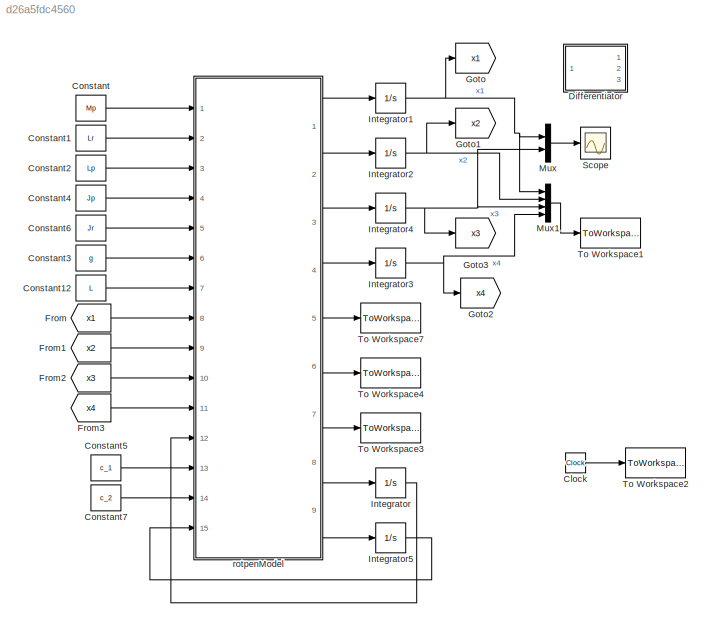
MODEL slx_d26a5fdc4560
KIND model
CONFIG AbsTol = auto
CONFIG EnableMultiTasking = off
CONFIG FixedStep = auto
CONFIG MaxStep = auto
CONFIG MinStep = auto
CONFIG RelTol = 1e-3
CONFIG SampleTimeConstraint = Unconstrained
CONFIG SolverName = VariableStepAuto
CONFIG StartTime = 0.0
CONFIG StopTime = 40
BLOCK [Clock] Clock
BLOCK [Constant] Constant
  Value = Mp
BLOCK [Constant] Constant1
  Value = Lr
BLOCK [Constant] Constant12
  Value = L
BLOCK [Constant] Constant2
  Value = Lp
BLOCK [Constant] Constant3
  Value = g
BLOCK [Constant] Constant4
  Value = Jp
BLOCK [Constant] Constant5
  Value = c_1
BLOCK [Constant] Constant6
  Value = Jr
BLOCK [Constant] Constant7
  Value = c_2
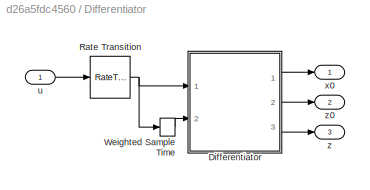
BLOCK [SubSystem] Differentiator
  Commented = on
  Ports = [1, 3]
  RequestExecContextInheritance = off
  TreatAsAtomicUnit = on
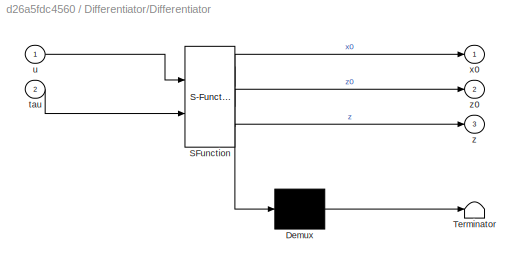
BLOCK [SubSystem] Differentiator/Differentiator
  ErrorFcn = Stateflow.Translate.translate
  PermitHierarchicalResolution = ExplicitOnly
  Ports = [2, 3]
  RequestExecContextInheritance = off
  SFBlockType = MATLAB Function
  SystemSampleTime = Ts
  TreatAsAtomicUnit = on
BLOCK [Demux] Differentiator/Differentiator/ Demux 
  Outputs = 1
  Ports = [1, 1]
BLOCK [S-Function] Differentiator/Differentiator/ SFunction 
  EnableBusSupport = on
  FunctionName = sf_sfun
  Parameters = Ts,d,m,mu,n,nf,r
  PortCounts = [2 4]
  Ports = [2, 4]
  SFcnIsStateOwnerBlock = off
  SFunctionDeploymentMode = off
  Tag = Stateflow S-Function 1
BLOCK [Terminator] Differentiator/Differentiator/ Terminator 
BLOCK [Inport] Differentiator/Differentiator/tau
  Port = 2
BLOCK [Inport] Differentiator/Differentiator/u
BLOCK [Outport] Differentiator/Differentiator/x0
  VectorParamsAs1DForOutWhenUnconnected = off
BLOCK [Outport] Differentiator/Differentiator/z
  Port = 3
  VectorParamsAs1DForOutWhenUnconnected = off
BLOCK [Outport] Differentiator/Differentiator/z0
  Port = 2
  VectorParamsAs1DForOutWhenUnconnected = off
BLOCK [RateTransition] Differentiator/Rate Transition
BLOCK [SampleTimeMath] Differentiator/Weighted Sample Time
  TsampMathOp = Ts Only
BLOCK [Inport] Differentiator/u
BLOCK [Outport] Differentiator/x0
  VectorParamsAs1DForOutWhenUnconnected = off
BLOCK [Outport] Differentiator/z
  Port = 3
  VectorParamsAs1DForOutWhenUnconnected = off
BLOCK [Outport] Differentiator/z0
  Port = 2
  VectorParamsAs1DForOutWhenUnconnected = off
BLOCK [From] From
  GotoTag = x1
BLOCK [From] From1
  GotoTag = x2
BLOCK [From] From2
  GotoTag = x3
BLOCK [From] From3
  GotoTag = x4
BLOCK [Goto] Goto
  GotoTag = x1
BLOCK [Goto] Goto1
  GotoTag = x2
BLOCK [Goto] Goto2
  GotoTag = x4
BLOCK [Goto] Goto3
  GotoTag = x3
BLOCK [Integrator] Integrator
  Ports = [1, 1]
BLOCK [Integrator] Integrator1
  InitialCondition = x0(1)
  Ports = [1, 1]
BLOCK [Integrator] Integrator2
  InitialCondition = x0(2)
  Ports = [1, 1]
BLOCK [Integrator] Integrator3
  InitialCondition = x0(4)
  Ports = [1, 1]
BLOCK [Integrator] Integrator4
  InitialCondition = x0(3)
  Ports = [1, 1]
BLOCK [Integrator] Integrator5
  Ports = [1, 1]
BLOCK [Mux] Mux
  DisplayOption = bar
  Inputs = 2
  Ports = [2, 1]
BLOCK [Mux] Mux1
  DisplayOption = bar
  Ports = [4, 1]
BLOCK [Scope] Scope
  Floating = off
  NumInputPorts = 1
  Ports = [1]
  ScopeSpecificationString = Simulink.scopes.TimeScopeBlockCfg('CurrentConfiguration', extmgr.ConfigurationSet(extmgr.Configuration('Core','General UI',true),extmgr.Configuration('Core','Source UI',true),extmgr.Configuration('Sources','WiredSimulink',true),extmgr.Configuration('Visuals','Time Domain',true,'SerializedDisplays',{struct('MinYLimReal','-1.37342','MaxYLimReal','0.53542','YLabelReal','','MinYLimMag','0.00000','MaxY...<+1424ch>
BLOCK [ToWorkspace] To Workspace1
  FixptAsFi = on
  MaxDataPoints = inf
  Ports = [1]
  SampleTime = -1
  VariableName = x
BLOCK [ToWorkspace] To Workspace2
  FixptAsFi = on
  MaxDataPoints = inf
  Ports = [1]
  SampleTime = -1
  VariableName = t
BLOCK [ToWorkspace] To Workspace3
  FixptAsFi = on
  MaxDataPoints = inf
  Ports = [1]
  SampleTime = -1
  VariableName = z
BLOCK [ToWorkspace] To Workspace4
  FixptAsFi = on
  MaxDataPoints = inf
  Ports = [1]
  SampleTime = -1
  VariableName = nuMu
BLOCK [ToWorkspace] To Workspace7
  FixptAsFi = on
  MaxDataPoints = inf
  Ports = [1]
  SampleTime = -1
  VariableName = tau
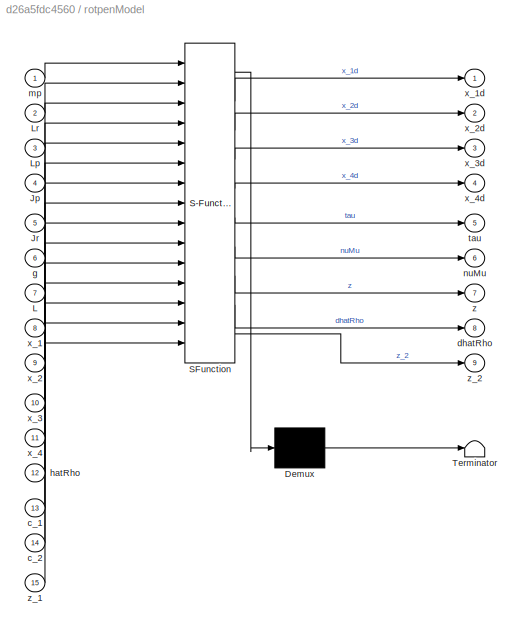
BLOCK [SubSystem] rotpenModel
  ErrorFcn = Stateflow.Translate.translate
  PermitHierarchicalResolution = ExplicitOnly
  Ports = [15, 9]
  RequestExecContextInheritance = off
  SFBlockType = MATLAB Function
  TreatAsAtomicUnit = on
BLOCK [Demux] rotpenModel/ Demux 
  Outputs = 1
  Ports = [1, 1]
BLOCK [S-Function] rotpenModel/ SFunction 
  EnableBusSupport = on
  FunctionName = sf_sfun
  PortCounts = [15 10]
  Ports = [15, 10]
  SFcnIsStateOwnerBlock = off
  SFunctionDeploymentMode = off
  Tag = Stateflow S-Function 5
BLOCK [Terminator] rotpenModel/ Terminator 
BLOCK [Inport] rotpenModel/Jp
  Port = 4
BLOCK [Inport] rotpenModel/Jr
  Port = 5
BLOCK [Inport] rotpenModel/L
  Port = 7
BLOCK [Inport] rotpenModel/Lp
  Port = 3
BLOCK [Inport] rotpenModel/Lr
  Port = 2
BLOCK [Inport] rotpenModel/c_1
  Port = 13
BLOCK [Inport] rotpenModel/c_2
  Port = 14
BLOCK [Outport] rotpenModel/dhatRho
  Port = 8
BLOCK [Inport] rotpenModel/g
  Port = 6
BLOCK [Inport] rotpenModel/hatRho
  Port = 12
BLOCK [Inport] rotpenModel/mp
BLOCK [Outport] rotpenModel/nuMu
  Port = 6
  VectorParamsAs1DForOutWhenUnconnected = off
BLOCK [Outport] rotpenModel/tau
  Port = 5
  VectorParamsAs1DForOutWhenUnconnected = off
BLOCK [Inport] rotpenModel/x_1
  Port = 8
BLOCK [Outport] rotpenModel/x_1d
BLOCK [Inport] rotpenModel/x_2
  Port = 9
BLOCK [Outport] rotpenModel/x_2d
  Port = 2
BLOCK [Inport] rotpenModel/x_3
  Port = 10
BLOCK [Outport] rotpenModel/x_3d
  Port = 3
BLOCK [Inport] rotpenModel/x_4
  Port = 11
BLOCK [Outport] rotpenModel/x_4d
  Port = 4
BLOCK [Outport] rotpenModel/z
  Port = 7
  VectorParamsAs1DForOutWhenUnconnected = off
BLOCK [Inport] rotpenModel/z_1
  Port = 15
BLOCK [Outport] rotpenModel/z_2
  Port = 9
LINE Clock:1 -> To Workspace2:1
LINE Constant12:1 -> rotpenModel:7
LINE Constant1:1 -> rotpenModel:2
LINE Constant2:1 -> rotpenModel:3
LINE Constant3:1 -> rotpenModel:6
LINE Constant4:1 -> rotpenModel:4
LINE Constant5:1 -> rotpenModel:13
LINE Constant6:1 -> rotpenModel:5
LINE Constant7:1 -> rotpenModel:14
LINE Constant:1 -> rotpenModel:1
LINE Differentiator/Differentiator:1 -> Differentiator/x0:1
LINE Differentiator/Differentiator:2 -> Differentiator/z0:1
LINE Differentiator/Differentiator:3 -> Differentiator/z:1
NET Differentiator/Rate Transition:1 -> Differentiator/Differentiator:1, Differentiator/Weighted Sample Time:1
LINE Differentiator/Weighted Sample Time:1 -> Differentiator/Differentiator:2
LINE Differentiator/u:1 -> Differentiator/Rate Transition:1
LINE From1:1 -> rotpenModel:9
LINE From2:1 -> rotpenModel:10
LINE From3:1 -> rotpenModel:11
LINE From:1 -> rotpenModel:8
NET Integrator1:1 -> Goto:1, Mux1:1, Mux:1
NET Integrator2:1 -> Goto1:1, Mux1:2
NET Integrator3:1 -> Goto2:1, Mux1:4
NET Integrator4:1 -> Goto3:1, Mux1:3, Mux:2
LINE Integrator5:1 -> rotpenModel:15
LINE Integrator:1 -> rotpenModel:12
LINE Mux1:1 -> To Workspace1:1
LINE Mux:1 -> Scope:1
LINE rotpenModel:1 -> Integrator1:1
LINE rotpenModel:2 -> Integrator2:1
LINE rotpenModel:3 -> Integrator4:1
LINE rotpenModel:4 -> Integrator3:1
LINE rotpenModel:5 -> To Workspace7:1
LINE rotpenModel:6 -> To Workspace4:1
LINE rotpenModel:7 -> To Workspace3:1
LINE rotpenModel:8 -> Integrator:1
LINE rotpenModel:9 -> Integrator5:1
note: NET lines group one-source signal fan-out (src -> all destinations, sorted); 1:1 wires keep LINE
CHART Differentiator/Differentiator states=1 transitions=1
  STATE_LABEL 'eML_blk_kernel()'
  STATE_LABEL 'SCRIPT:\nfunction [x0, z0, z] = differentiator(u, n, nf, d, r, m, mu, tau, Ts)\n    % Calculates the derivatives up to n-th order of a given signal u\n    %   u...  signal vector\n    %   n...  maximum order of derivative\n    %   nf... filtering order\n    %   r...  robustness factor\n    %   d...  homogeneity factor: between -1 for Robust Exact Differentiator and 0 for Linear Differentiator\n    %   m.....<+3608ch>'
CHART rotpenModel states=1 transitions=1
  STATE_LABEL 'eML_blk_kernel()'
  STATE_LABEL 'SCRIPT:\nfunction [x_1d,x_2d,x_3d,x_4d,tau, nuMu,z,dhatRho,z_2]  = rotpenModel(mp,Lr,Lp,Jp,Jr,g,L,x_1,x_2,x_3,x_4,hatRho,c_1,c_2,z_1)\n% \n% x_1=q(1);\n% x_3=q(2);\n% \n% x_2=dq(1);\n% x_4=dq(2);\n\nb_1= Jr + mp*Lr^2 + 0.25*mp*Lp^2;\nb_2= 0.25*mp*Lp^2;\nb_3= 0.5*mp*Lp*Lr;\nb_4= Jp +b_2;\nb_5= 0.5*mp*Lp*g;\n\n% % % Quanser Model\n% % \n% % states\n% % % \n% M=[mp*Lr^2+0.25*mp*Lp^2-0.25*mp*Lp^2*(cos(x_3)^2)+Jr, -0.5*m...<+1697ch>'
CHART  states=0 transitions=0
CHART  states=0 transitions=0
